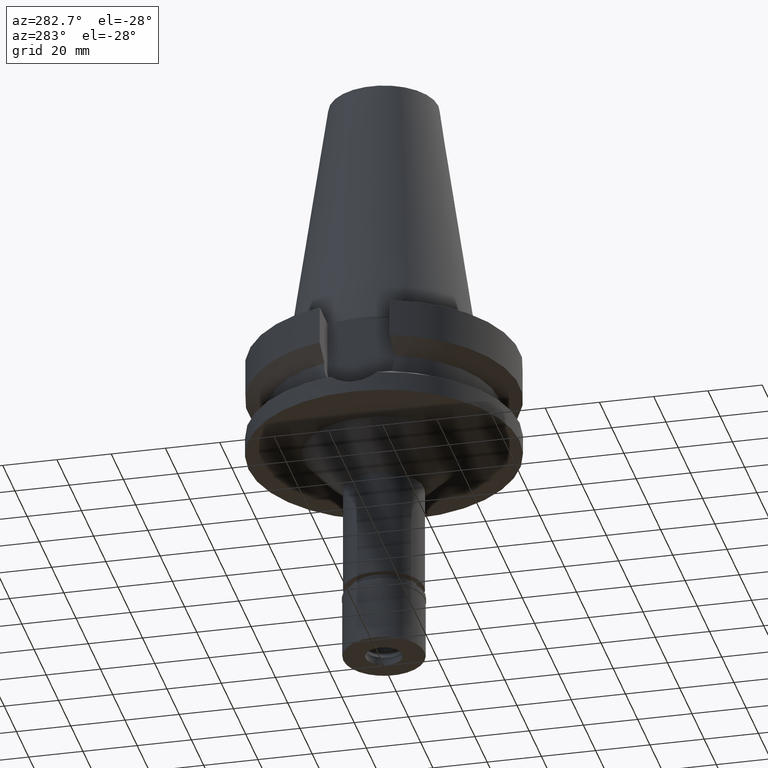
[diagram: clean part render]
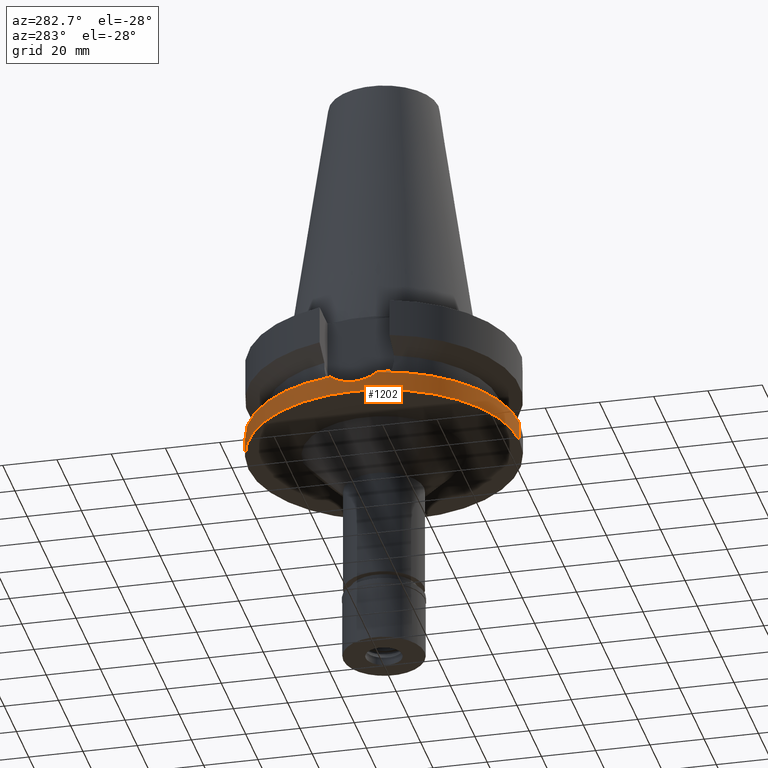
[diagram: same view with one face highlighted and labeled with its STEP entity id]
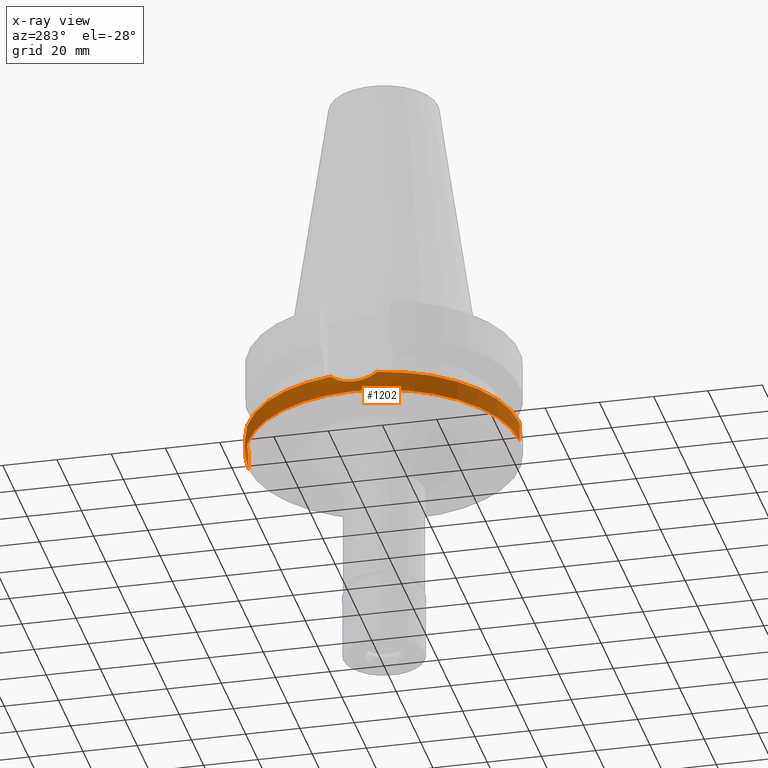
[diagram: x-ray of the same camera — body ghosted, the highlighted face saturated]
A machine part, auxiliary view. The second image highlights one B-rep face of the part: STEP entity #1202.
The next image is the same camera in x-ray: the body ghosted, the highlighted face saturated — about 0% of this face is hidden behind the body in this view.
In plain terms, the highlighted cylindrical surface (partial cylindrical patch) has radius 50 mm, axis along (0, 0, -1).
Its self-contained STEP definition (entity closure, byte-faithful):
#6 = CARTESIAN_POINT ( 'NONE',  ( -49.61147438050863201, -6.221391044453514318, -32.39396909468938901 ) ) ;
#25 = ORIENTED_EDGE ( 'NONE', *, *, #2269, .T. ) ;
#27 = AXIS2_PLACEMENT_3D ( 'NONE', #2079, #628, #434 ) ;
#160 = CARTESIAN_POINT ( 'NONE',  ( -49.60488409839970814, 6.283811132734578031, -32.36654260504120373 ) ) ;
#177 = CARTESIAN_POINT ( 'NONE',  ( -49.64857037783838223, 5.927508036916453449, -32.55786152406587064 ) ) ;
#194 = CARTESIAN_POINT ( 'NONE',  ( -49.99991273105131739, -0.006584162459227009892, -34.00001921904479474 ) ) ;
#199 = B_SPLINE_CURVE_WITH_KNOTS ( 'NONE', 3,
 ( #1869, #2843, #2163, #3110, #2798, #2815, #635, #3070, #414, #653, #2095, #2384, #1682, #160, #177, #1150, #1666, #1917, #1637, #2113, #939, #1648, #1169, #2399, #3087, #912, #208, #704, #1900, #2597, #1887, #680, #666, #2632, #194, #1435, #2611, #441, #455, #1419, #1197, #1182, #2144, #2470, #2661, #781, #1484, #245, #1450, #1465, #2931, #6, #1277, #956, #985, #1231, #1756, #3132, #723, #1517, #1935, #2213 ),
 .UNSPECIFIED., .F., .F.,
 ( 4, 2, 2, 1, 1, 1, 1, 2, 2, 2, 2, 1, 1, 1, 2, 2, 2, 2, 1, 1, 1, 2, 2, 2, 2, 1, 1, 1, 1, 2, 2, 2, 2, 1, 1, 1, 1, 2, 2, 4 ),
 ( 0.0000000000000000000, 0.06249999999998920308, 0.09374999999998379074, 0.1093749999999810291, 0.1171874999999792943, 0.1210937499999783645, 0.1230468749999782951, 0.1240234374999778511, 0.1249999999999774070, 0.1874999999999654721, 0.2187499999999596434, 0.2343749999999564515, 0.2421874999999550082, 0.2460937499999545919, 0.2480468749999543143, 0.2499999999999540368, 0.3749999999999495404, 0.4374999999999472644, 0.4687499999999461542, 0.4843749999999456546, 0.4921874999999453215, 0.4960937499999452105, 0.4999999999999450440, 0.6249999999999406031, 0.6874999999999384936, 0.7187499999999373834, 0.7343749999999369393, 0.7421874999999366063, 0.7460937499999366063, 0.7480468749999364952, 0.7499999999999363842, 0.8124999999999322764, 0.8437499999999301670, 0.8593749999999291678, 0.8671874999999286127, 0.8710937499999283906, 0.8730468749999282796, 0.8740234374999281686, 0.8749999999999280575, 1.000000000000000000 ),
 .UNSPECIFIED. ) ;
#208 = CARTESIAN_POINT ( 'NONE',  ( -49.96617431543788257, 1.860606363976273103, -33.87053246604180856 ) ) ;
#209 = DIRECTION ( 'NONE',  ( 0.0000000000000000000, -2.054527022025999694E-14, -1.000000000000000000 ) ) ;
#245 = CARTESIAN_POINT ( 'NONE',  ( -49.75884625849811016, -4.915990744890889275, -33.02790654727753861 ) ) ;
#414 = CARTESIAN_POINT ( 'NONE',  ( -49.54876419976699964, 6.702274092971869379, -32.11370156886587779 ) ) ;
#434 = DIRECTION ( 'NONE',  ( 0.0000000000000000000, -1.000000000000000000, 0.0000000000000000000 ) ) ;
#441 = CARTESIAN_POINT ( 'NONE',  ( -49.92918642175306587, -2.674950104035255460, -33.72447902266269182 ) ) ;
#452 = ORIENTED_EDGE ( 'NONE', *, *, #2449, .F. ) ;
#455 = CARTESIAN_POINT ( 'NONE',  ( -49.90735102913409804, -3.057557830883625982, -33.63722763432493679 ) ) ;
#547 = VECTOR ( 'NONE', #209, 1000.000000000000000 ) ;
#591 = ORIENTED_EDGE ( 'NONE', *, *, #2358, .T. ) ;
#628 = DIRECTION ( 'NONE',  ( 0.0000000000000000000, 0.0000000000000000000, -1.000000000000000000 ) ) ;
#635 = CARTESIAN_POINT ( 'NONE',  ( -49.52324508229735756, 6.888632651164586562, -31.99812721980008945 ) ) ;
#650 = AXIS2_PLACEMENT_3D ( 'NONE', #2114, #2368, #2352 ) ;
#653 = CARTESIAN_POINT ( 'NONE',  ( -49.55287295193546981, 6.671816821646067375, -32.13223749593569067 ) ) ;
#666 = CARTESIAN_POINT ( 'NONE',  ( -49.99987023247162199, 0.06470805805290850976, -33.99985819377553753 ) ) ;
#680 = CARTESIAN_POINT ( 'NONE',  ( -49.99975914029512580, 0.1346460504913640777, -33.99944274152841928 ) ) ;
#704 = CARTESIAN_POINT ( 'NONE',  ( -49.97901735193011774, 1.478661057209020413, -33.92031390534803847 ) ) ;
#723 = CARTESIAN_POINT ( 'NONE',  ( -49.55452737809056174, -6.659527011957222520, -32.13968720375057586 ) ) ;
#757 = EDGE_CURVE ( 'NONE', #2721, #2086, #199, .T. ) ;
#781 = CARTESIAN_POINT ( 'NONE',  ( -49.79192014177104397, -4.556612150784896897, -33.16498836660845484 ) ) ;
#789 = VERTEX_POINT ( 'NONE', #2911 ) ;
#912 = CARTESIAN_POINT ( 'NONE',  ( -49.91457795808452858, 3.009609490527907827, -33.66678711809447577 ) ) ;
#939 = CARTESIAN_POINT ( 'NONE',  ( -49.78669315018676400, 4.613394701573268364, -33.14333125227504695 ) ) ;
#956 = CARTESIAN_POINT ( 'NONE',  ( -49.57459129018937460, -6.508703536311841731, -32.22988766527861770 ) ) ;
#979 = VERTEX_POINT ( 'NONE', #983 ) ;
#983 = CARTESIAN_POINT ( 'NONE',  ( 0.0000000000000000000, -50.00000000000000000, -38.00000000000000000 ) ) ;
#985 = CARTESIAN_POINT ( 'NONE',  ( -49.56433009250331168, -6.586224381693531527, -32.18382597143436641 ) ) ;
#1051 = VERTEX_POINT ( 'NONE', #1947 ) ;
#1061 = CARTESIAN_POINT ( 'NONE',  ( 0.0000000000000000000, 0.0000000000000000000, -30.73730776426999967 ) ) ;
#1120 = EDGE_LOOP ( 'NONE', ( #591, #25, #2610, #452, #1768, #1127 ) ) ;
#1127 = ORIENTED_EDGE ( 'NONE', *, *, #757, .F. ) ;
#1144 = CARTESIAN_POINT ( 'NONE',  ( -49.26250064874000145, 8.556052234130000045, -30.73730776426999967 ) ) ;
#1150 = CARTESIAN_POINT ( 'NONE',  ( -49.70771372439230618, 5.400358766112665521, -32.81176076830866606 ) ) ;
#1169 = CARTESIAN_POINT ( 'NONE',  ( -49.79157753245185347, 4.560342035735057920, -33.16357187945751406 ) ) ;
#1170 = LINE ( 'NONE', #1389, #3117 ) ;
#1182 = CARTESIAN_POINT ( 'NONE',  ( -49.81925707087658850, -4.248792679354929547, -33.27798428491762905 ) ) ;
#1197 = CARTESIAN_POINT ( 'NONE',  ( -49.84687376355669386, -3.916281446161200552, -33.39154925898539972 ) ) ;
#1198 = LINE ( 'NONE', #1948, #547 ) ;
#1202 = ADVANCED_FACE ( 'NONE', ( #2318 ), #1644, .T. ) ;
#1231 = CARTESIAN_POINT ( 'NONE',  ( -49.55915644612224469, -6.625001971890071673, -32.16054684398613261 ) ) ;
#1265 = DIRECTION ( 'NONE',  ( 0.0000000000000000000, 0.0000000000000000000, -1.000000000000000000 ) ) ;
#1277 = CARTESIAN_POINT ( 'NONE',  ( -49.59476930525741523, -6.353818072184720833, -32.32003745890534674 ) ) ;
#1312 = CARTESIAN_POINT ( 'NONE',  ( -49.26250064874000145, -8.556052234130000045, -30.73730776426999967 ) ) ;
#1389 = CARTESIAN_POINT ( 'NONE',  ( 0.0000000000000000000, 50.00000000000000000, -30.73730776426999967 ) ) ;
#1419 = CARTESIAN_POINT ( 'NONE',  ( -49.86811357895723518, -3.630246826961832429, -33.47814103770292604 ) ) ;
#1435 = CARTESIAN_POINT ( 'NONE',  ( -49.99945721735747384, -0.7714997704411283852, -33.99824750168257026 ) ) ;
#1450 = CARTESIAN_POINT ( 'NONE',  ( -49.72374525093239583, -5.259370620465691815, -32.88078653237415239 ) ) ;
#1465 = CARTESIAN_POINT ( 'NONE',  ( -49.66479649973661736, -5.781788912144613768, -32.62740715376470035 ) ) ;
#1484 = CARTESIAN_POINT ( 'NONE',  ( -49.79071482015528716, -4.569755982003271377, -33.15999402029141407 ) ) ;
#1517 = CARTESIAN_POINT ( 'NONE',  ( -49.48057468274933512, -7.209465211751673763, -31.80614403059218986 ) ) ;
#1556 = EDGE_CURVE ( 'NONE', #1051, #2086, #2964, .T. ) ;
#1574 = AXIS2_PLACEMENT_3D ( 'NONE', #2184, #1265, #2662 ) ;
#1637 = CARTESIAN_POINT ( 'NONE',  ( -49.76553265373417645, 4.837331713244800824, -33.05535982823643337 ) ) ;
#1644 = CYLINDRICAL_SURFACE ( 'NONE', #27, 50.00000000000000000 ) ;
#1648 = CARTESIAN_POINT ( 'NONE',  ( -49.78962876866503251, 4.581554299886604120, -33.15549828132823507 ) ) ;
#1666 = CARTESIAN_POINT ( 'NONE',  ( -49.72636382780959252, 5.225848876063680315, -32.89088500007393634 ) ) ;
#1677 = VERTEX_POINT ( 'NONE', #1988 ) ;
#1682 = CARTESIAN_POINT ( 'NONE',  ( -49.55619131751910800, 6.647123698554644911, -32.14719460433416742 ) ) ;
#1683 = DIRECTION ( 'NONE',  ( 0.0000000000000000000, 2.152361642122000014E-14, -1.000000000000000000 ) ) ;
#1756 = CARTESIAN_POINT ( 'NONE',  ( -49.55692994462935985, -6.641624362566334483, -32.15051670372779569 ) ) ;
#1768 = ORIENTED_EDGE ( 'NONE', *, *, #1556, .T. ) ;
#1869 = CARTESIAN_POINT ( 'NONE',  ( -49.26250064874000145, 8.556052234130000045, -30.73730776426999967 ) ) ;
#1887 = CARTESIAN_POINT ( 'NONE',  ( -49.99914261765750467, 0.2981666964969078015, -33.99713625434513631 ) ) ;
#1900 = CARTESIAN_POINT ( 'NONE',  ( -49.99174828273024929, 0.9098557518051257897, -33.96916052055340884 ) ) ;
#1917 = CARTESIAN_POINT ( 'NONE',  ( -49.75274246478447537, 4.966444649448195747, -33.00182567409221690 ) ) ;
#1935 = CARTESIAN_POINT ( 'NONE',  ( -49.38342353186849465, -7.859824178779329706, -31.35864628337450100 ) ) ;
#1947 = CARTESIAN_POINT ( 'NONE',  ( 0.0000000000000000000, -50.00000000000000000, -30.73730776426999967 ) ) ;
#1948 = CARTESIAN_POINT ( 'NONE',  ( 0.0000000000000000000, -50.00000000000000000, -30.73730776426999967 ) ) ;
#1988 = CARTESIAN_POINT ( 'NONE',  ( 0.0000000000000000000, 50.00000000000000000, -30.73730776426999967 ) ) ;
#2031 = DIRECTION ( 'NONE',  ( 0.0000000000000000000, 0.0000000000000000000, -1.000000000000000000 ) ) ;
#2079 = CARTESIAN_POINT ( 'NONE',  ( 0.0000000000000000000, 2.601027336708999694E-14, 112.3900000000000006 ) ) ;
#2086 = VERTEX_POINT ( 'NONE', #1312 ) ;
#2095 = CARTESIAN_POINT ( 'NONE',  ( -49.55462058136798476, 6.658819815799436270, -32.14011575161323719 ) ) ;
#2113 = CARTESIAN_POINT ( 'NONE',  ( -49.77975606415107279, 4.687841416808269379, -33.11454327612492676 ) ) ;
#2114 = CARTESIAN_POINT ( 'NONE',  ( 0.0000000000000000000, 2.601027336708999694E-14, -38.00000000000000000 ) ) ;
#2144 = CARTESIAN_POINT ( 'NONE',  ( -49.80473949752494889, -4.414664527959262230, -33.21804433599395878 ) ) ;
#2163 = CARTESIAN_POINT ( 'NONE',  ( -49.37875750950859555, 7.862734579505018750, -31.32141353907964287 ) ) ;
#2184 = CARTESIAN_POINT ( 'NONE',  ( 0.0000000000000000000, 0.0000000000000000000, -30.73730776426999967 ) ) ;
#2213 = CARTESIAN_POINT ( 'NONE',  ( -49.26250064874000145, -8.556052234130000045, -30.73730776426999967 ) ) ;
#2234 = EDGE_CURVE ( 'NONE', #789, #979, #2326, .T. ) ;
#2269 = EDGE_CURVE ( 'NONE', #1677, #789, #1170, .T. ) ;
#2318 = FACE_OUTER_BOUND ( 'NONE', #1120, .T. ) ;
#2326 = CIRCLE ( 'NONE', #650, 50.00000000000000000 ) ;
#2352 = DIRECTION ( 'NONE',  ( 0.0000000000000000000, 1.000000000000000000, 0.0000000000000000000 ) ) ;
#2358 = EDGE_CURVE ( 'NONE', #2721, #1677, #2925, .T. ) ;
#2368 = DIRECTION ( 'NONE',  ( 0.0000000000000000000, 0.0000000000000000000, 1.000000000000000000 ) ) ;
#2384 = CARTESIAN_POINT ( 'NONE',  ( -49.55578272002213680, 6.650167653822079750, -32.14535337081981936 ) ) ;
#2399 = CARTESIAN_POINT ( 'NONE',  ( -49.79243189272331449, 4.551013503816291994, -33.16711017034294429 ) ) ;
#2449 = EDGE_CURVE ( 'NONE', #1051, #979, #1198, .T. ) ;
#2470 = CARTESIAN_POINT ( 'NONE',  ( -49.79730340409626876, -4.497493828711441211, -33.18728234315009473 ) ) ;
#2520 = AXIS2_PLACEMENT_3D ( 'NONE', #1061, #2031, #2740 ) ;
#2597 = CARTESIAN_POINT ( 'NONE',  ( -49.99648034214573755, 0.6264769081141525753, -33.98713079862675102 ) ) ;
#2610 = ORIENTED_EDGE ( 'NONE', *, *, #2234, .T. ) ;
#2611 = CARTESIAN_POINT ( 'NONE',  ( -49.98172387711316844, -1.530259641423073358, -33.93210970191074694 ) ) ;
#2632 = CARTESIAN_POINT ( 'NONE',  ( -49.99991026463129629, 0.01811504224163602850, -34.00000834934211014 ) ) ;
#2661 = CARTESIAN_POINT ( 'NONE',  ( -49.79407851260837958, -4.532968099298561704, -33.17392864055500468 ) ) ;
#2662 = DIRECTION ( 'NONE',  ( -0.9852500129747439050, 0.1711210446826074982, 0.0000000000000000000 ) ) ;
#2721 = VERTEX_POINT ( 'NONE', #1144 ) ;
#2740 = DIRECTION ( 'NONE',  ( 0.0000000000000000000, -1.000000000000000000, 0.0000000000000000000 ) ) ;
#2798 = CARTESIAN_POINT ( 'NONE',  ( -49.47539491695300740, 7.224428800482042945, -31.77838169879210994 ) ) ;
#2815 = CARTESIAN_POINT ( 'NONE',  ( -49.50767232436189147, 6.999135333729569197, -31.92695211259899324 ) ) ;
#2843 = CARTESIAN_POINT ( 'NONE',  ( -49.32364745655879545, 8.203992127720207250, -31.05149864392709702 ) ) ;
#2911 = CARTESIAN_POINT ( 'NONE',  ( 0.0000000000000000000, 50.00000000000000000, -38.00000000000000000 ) ) ;
#2925 = CIRCLE ( 'NONE', #1574, 50.00000000000000000 ) ;
#2931 = CARTESIAN_POINT ( 'NONE',  ( -49.64409737603015316, -5.957143205021480981, -32.53749906503679767 ) ) ;
#2964 = CIRCLE ( 'NONE', #2520, 50.00000000000000000 ) ;
#3070 = CARTESIAN_POINT ( 'NONE',  ( -49.54042289479305339, 6.763708972037296263, -32.07601203842452975 ) ) ;
#3087 = CARTESIAN_POINT ( 'NONE',  ( -49.86275738934693891, 3.780006177205152973, -33.45822970160247678 ) ) ;
#3110 = CARTESIAN_POINT ( 'NONE',  ( -49.45236745662983679, 7.380351693976178851, -31.67104300846175491 ) ) ;
#3117 = VECTOR ( 'NONE', #1683, 1000.000000000000000 ) ;
#3132 = CARTESIAN_POINT ( 'NONE',  ( -49.55544356041799858, -6.652706688612170183, -32.14381806460902169 ) ) ;